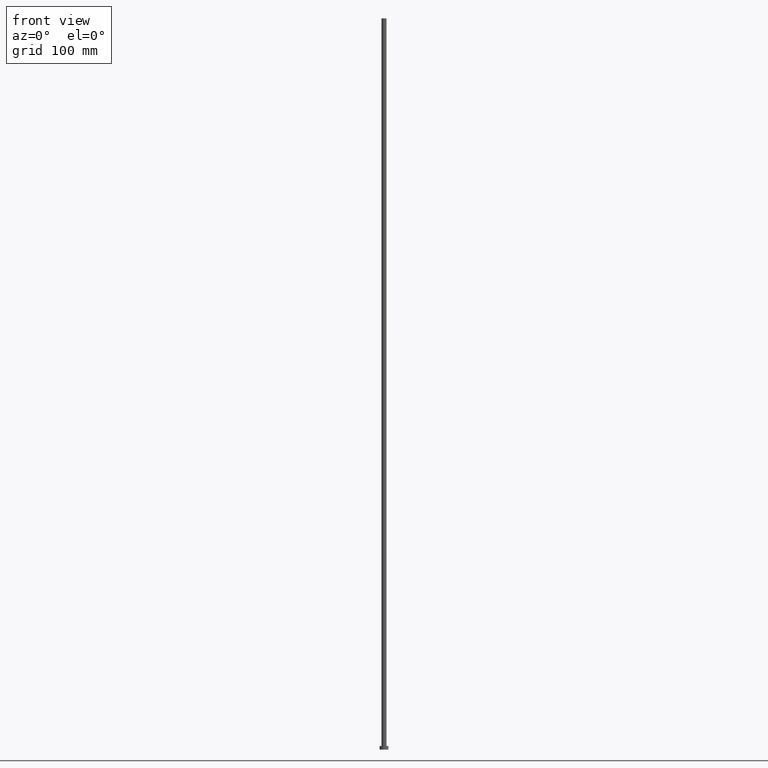
[diagram: clean part render]
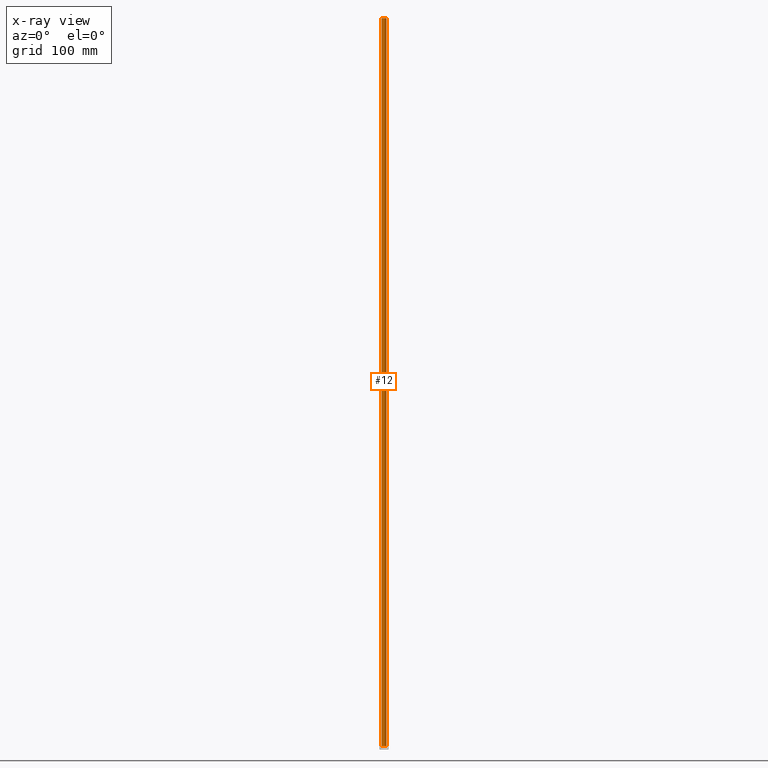
[diagram: x-ray — body ghosted, one internal face saturated and labeled with its STEP entity id]
A machine part, front view, then the same camera in x-ray: the body is ghosted and one INTERNAL B-rep face — a face not visible from any outside direction — is saturated and labeled: STEP entity #12.
In plain terms, the highlighted cylindrical surface (edge-blend (fillet) strip) has radius 3.5 mm, axis along (-0, -0, -1).
Its self-contained STEP definition (entity closure, byte-faithful):
#3 = ORIENTED_EDGE ( 'NONE', *, *, #207, .F. ) ;
#4 = VECTOR ( 'NONE', #209, 1000.000000000000000 ) ;
#12 = ADVANCED_FACE ( 'NONE', ( #161 ), #245, .T. ) ;
#13 = DIRECTION ( 'NONE',  ( 1.000000000000000000, 0.000000000000000000, 0.000000000000000000 ) ) ;
#21 = CARTESIAN_POINT ( 'NONE',  ( 0.000000000000000000, 0.000000000000000000, 1000.000000000000000 ) ) ;
#30 = EDGE_CURVE ( 'NONE', #217, #239, #96, .T. ) ;
#37 = DIRECTION ( 'NONE',  ( 1.000000000000000000, 0.000000000000000000, 0.000000000000000000 ) ) ;
#42 = ORIENTED_EDGE ( 'NONE', *, *, #30, .F. ) ;
#55 = CARTESIAN_POINT ( 'NONE',  ( 0.000000000000000000, 0.000000000000000000, 1000.000000000000000 ) ) ;
#65 = LINE ( 'NONE', #86, #4 ) ;
#73 = CARTESIAN_POINT ( 'NONE',  ( 3.500000000000000000, 4.286263797015735609E-16, 1000.000000000000000 ) ) ;
#86 = CARTESIAN_POINT ( 'NONE',  ( 3.500000000000000000, 4.286263797015735609E-16, 1000.000000000000000 ) ) ;
#90 = EDGE_LOOP ( 'NONE', ( #3, #221, #213, #42 ) ) ;
#92 = DIRECTION ( 'NONE',  ( 0.000000000000000000, 0.000000000000000000, 1.000000000000000000 ) ) ;
#96 = LINE ( 'NONE', #243, #180 ) ;
#98 = CIRCLE ( 'NONE', #249, 3.500000000000000000 ) ;
#115 = CARTESIAN_POINT ( 'NONE',  ( 3.500000000000000000, 4.286263797015735609E-16, 5.000000000000000000 ) ) ;
#122 = EDGE_CURVE ( 'NONE', #155, #174, #65, .T. ) ;
#132 = CIRCLE ( 'NONE', #148, 3.500000000000000000 ) ;
#137 = CARTESIAN_POINT ( 'NONE',  ( 0.000000000000000000, 0.000000000000000000, 5.000000000000000000 ) ) ;
#148 = AXIS2_PLACEMENT_3D ( 'NONE', #137, #196, #13 ) ;
#155 = VERTEX_POINT ( 'NONE', #73 ) ;
#160 = EDGE_CURVE ( 'NONE', #174, #239, #132, .T. ) ;
#161 = FACE_OUTER_BOUND ( 'NONE', #90, .T. ) ;
#174 = VERTEX_POINT ( 'NONE', #115 ) ;
#179 = DIRECTION ( 'NONE',  ( -0.000000000000000000, -0.000000000000000000, -1.000000000000000000 ) ) ;
#180 = VECTOR ( 'NONE', #179, 1000.000000000000000 ) ;
#182 = DIRECTION ( 'NONE',  ( -0.000000000000000000, -0.000000000000000000, -1.000000000000000000 ) ) ;
#184 = DIRECTION ( 'NONE',  ( -1.000000000000000000, 0.000000000000000000, 0.000000000000000000 ) ) ;
#193 = AXIS2_PLACEMENT_3D ( 'NONE', #21, #182, #184 ) ;
#196 = DIRECTION ( 'NONE',  ( 0.000000000000000000, 0.000000000000000000, 1.000000000000000000 ) ) ;
#207 = EDGE_CURVE ( 'NONE', #155, #217, #98, .T. ) ;
#209 = DIRECTION ( 'NONE',  ( -0.000000000000000000, -0.000000000000000000, -1.000000000000000000 ) ) ;
#212 = CARTESIAN_POINT ( 'NONE',  ( -3.500000000000000000, 0.000000000000000000, 1000.000000000000000 ) ) ;
#213 = ORIENTED_EDGE ( 'NONE', *, *, #160, .T. ) ;
#216 = CARTESIAN_POINT ( 'NONE',  ( -3.500000000000000000, 0.000000000000000000, 5.000000000000000000 ) ) ;
#217 = VERTEX_POINT ( 'NONE', #212 ) ;
#221 = ORIENTED_EDGE ( 'NONE', *, *, #122, .T. ) ;
#239 = VERTEX_POINT ( 'NONE', #216 ) ;
#243 = CARTESIAN_POINT ( 'NONE',  ( -3.500000000000000000, 0.000000000000000000, 1000.000000000000000 ) ) ;
#245 = CYLINDRICAL_SURFACE ( 'NONE', #193, 3.500000000000000000 ) ;
#249 = AXIS2_PLACEMENT_3D ( 'NONE', #55, #92, #37 ) ;